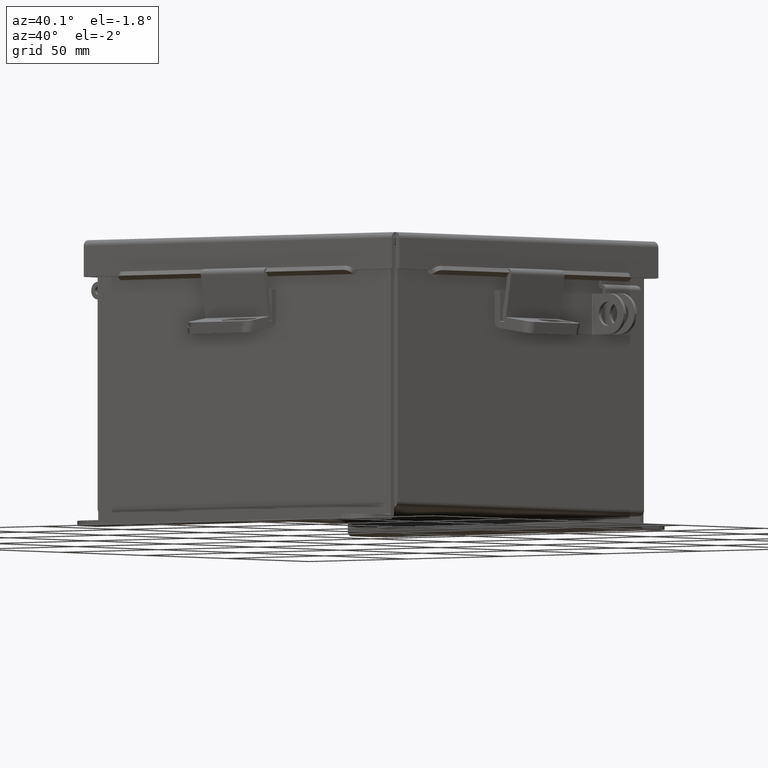
[diagram: clean part render]
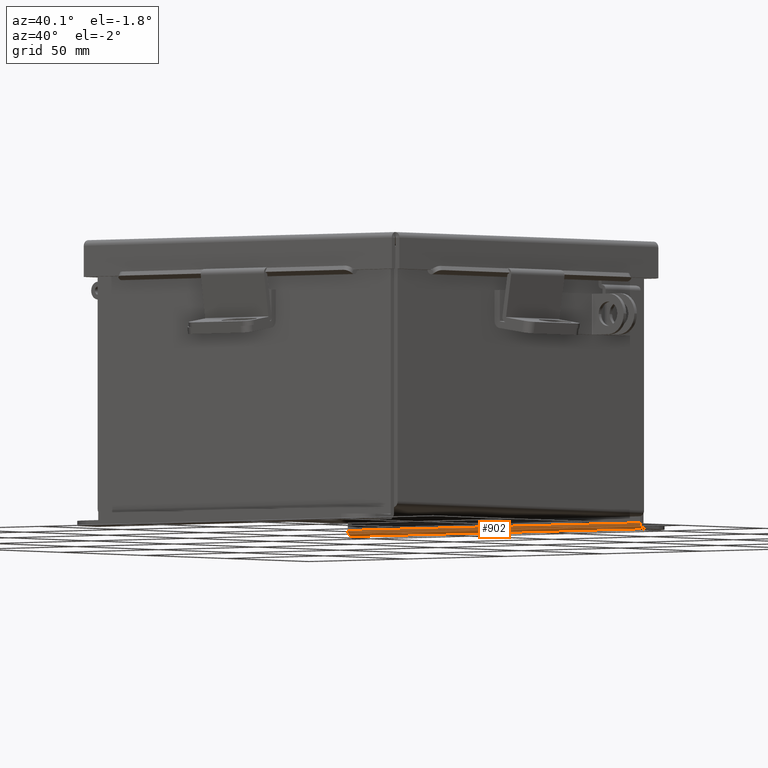
[diagram: same view with one face highlighted and labeled with its STEP entity id]
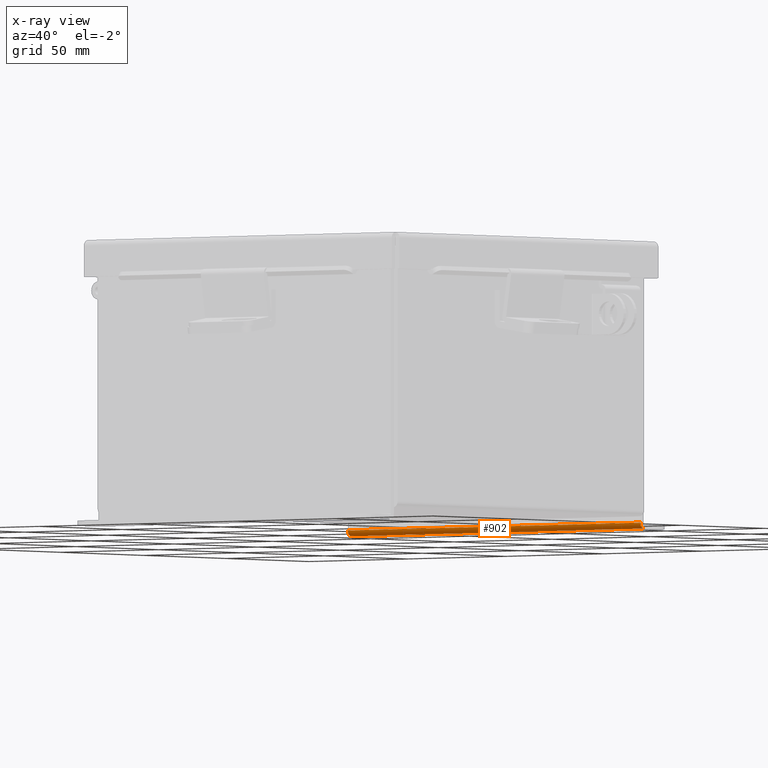
[diagram: x-ray of the same camera — body ghosted, the highlighted face saturated]
A machine part, auxiliary view. The second image highlights one B-rep face of the part: STEP entity #902.
The next image is the same camera in x-ray: the body ghosted, the highlighted face saturated — about 0% of this face is hidden behind the body in this view.
In plain terms, the highlighted cylindrical surface (edge-blend (fillet) strip) has radius 2.2276 mm, axis along (-1, -0, 0).
Its self-contained STEP definition (entity closure, byte-faithful):
#77 = VERTEX_POINT ( 'NONE', #3659 ) ;
#705 = ORIENTED_EDGE ( 'NONE', *, *, #1201, .F. ) ;
#857 = CIRCLE ( 'NONE', #7061, 0.08770000000000009700 ) ;
#902 = ADVANCED_FACE ( 'NONE', ( #13757 ), #4664, .T. ) ;
#971 = ORIENTED_EDGE ( 'NONE', *, *, #9940, .T. ) ;
#1201 = EDGE_CURVE ( 'NONE', #8149, #1529, #857, .T. ) ;
#1226 = EDGE_CURVE ( 'NONE', #11764, #77, #6708, .T. ) ;
#1529 = VERTEX_POINT ( 'NONE', #3196 ) ;
#1547 = DIRECTION ( 'NONE',  ( 1.000000000000000000, 8.208677865577646300E-017, -0.0000000000000000000 ) ) ;
#2123 = VECTOR ( 'NONE', #12197, 39.37007874015748100 ) ;
#3105 = ORIENTED_EDGE ( 'NONE', *, *, #11493, .F. ) ;
#3196 = CARTESIAN_POINT ( 'NONE',  ( 2.925299999999999100, 0.01299999999999956100, -2.186999999999998900 ) ) ;
#3659 = CARTESIAN_POINT ( 'NONE',  ( -2.925300000000000500, -0.07470000000000071000, -2.099299999999999100 ) ) ;
#3914 = CARTESIAN_POINT ( 'NONE',  ( -2.925300000000000500, 0.01299999999999956100, -2.099299999999999100 ) ) ;
#4375 = AXIS2_PLACEMENT_3D ( 'NONE', #7609, #6505, #11970 ) ;
#4664 = CYLINDRICAL_SURFACE ( 'NONE', #4375, 0.08770000000000000000 ) ;
#5040 = DIRECTION ( 'NONE',  ( 0.0000000000000000000, -1.000000000000000000, 0.0000000000000000000 ) ) ;
#5580 = AXIS2_PLACEMENT_3D ( 'NONE', #3914, #11609, #5040 ) ;
#5614 = CARTESIAN_POINT ( 'NONE',  ( 2.925299999999999100, 0.01300000000000010700, -2.186999999999998900 ) ) ;
#6505 = DIRECTION ( 'NONE',  ( -1.000000000000000000, -8.208677865577646300E-017, 0.0000000000000000000 ) ) ;
#6708 = CIRCLE ( 'NONE', #5580, 0.08770000000000009700 ) ;
#7061 = AXIS2_PLACEMENT_3D ( 'NONE', #8121, #1547, #9232 ) ;
#7192 = EDGE_LOOP ( 'NONE', ( #3105, #9545, #971, #705 ) ) ;
#7609 = CARTESIAN_POINT ( 'NONE',  ( -2.925300000000001300, 0.01299999999999956100, -2.099299999999999100 ) ) ;
#7627 = LINE ( 'NONE', #5614, #2123 ) ;
#8121 = CARTESIAN_POINT ( 'NONE',  ( 2.925299999999999100, 0.01300000000000010700, -2.099299999999999100 ) ) ;
#8149 = VERTEX_POINT ( 'NONE', #13441 ) ;
#8472 = DIRECTION ( 'NONE',  ( 1.000000000000000000, 8.208677865577646300E-017, -0.0000000000000000000 ) ) ;
#8854 = CARTESIAN_POINT ( 'NONE',  ( -2.925300000000000500, 0.01300000000000010700, -2.186999999999998900 ) ) ;
#8966 = VECTOR ( 'NONE', #8472, 39.37007874015748100 ) ;
#9232 = DIRECTION ( 'NONE',  ( 0.0000000000000000000, -1.000000000000000000, 0.0000000000000000000 ) ) ;
#9545 = ORIENTED_EDGE ( 'NONE', *, *, #1226, .F. ) ;
#9940 = EDGE_CURVE ( 'NONE', #11764, #1529, #7627, .T. ) ;
#11493 = EDGE_CURVE ( 'NONE', #77, #8149, #11882, .T. ) ;
#11609 = DIRECTION ( 'NONE',  ( -1.000000000000000000, -8.208677865577646300E-017, 0.0000000000000000000 ) ) ;
#11764 = VERTEX_POINT ( 'NONE', #8854 ) ;
#11882 = LINE ( 'NONE', #13956, #8966 ) ;
#11970 = DIRECTION ( 'NONE',  ( 0.0000000000000000000, -3.334014886794506100E-015, -1.000000000000000000 ) ) ;
#12197 = DIRECTION ( 'NONE',  ( 1.000000000000000000, 4.669346722839134300E-017, -1.556024793827568100E-031 ) ) ;
#13441 = CARTESIAN_POINT ( 'NONE',  ( 2.925299999999999100, -0.07470000000000015500, -2.099299999999999100 ) ) ;
#13757 = FACE_OUTER_BOUND ( 'NONE', #7192, .T. ) ;
#13956 = CARTESIAN_POINT ( 'NONE',  ( -2.925300000000001300, -0.07470000000000071000, -2.099299999999999100 ) ) ;